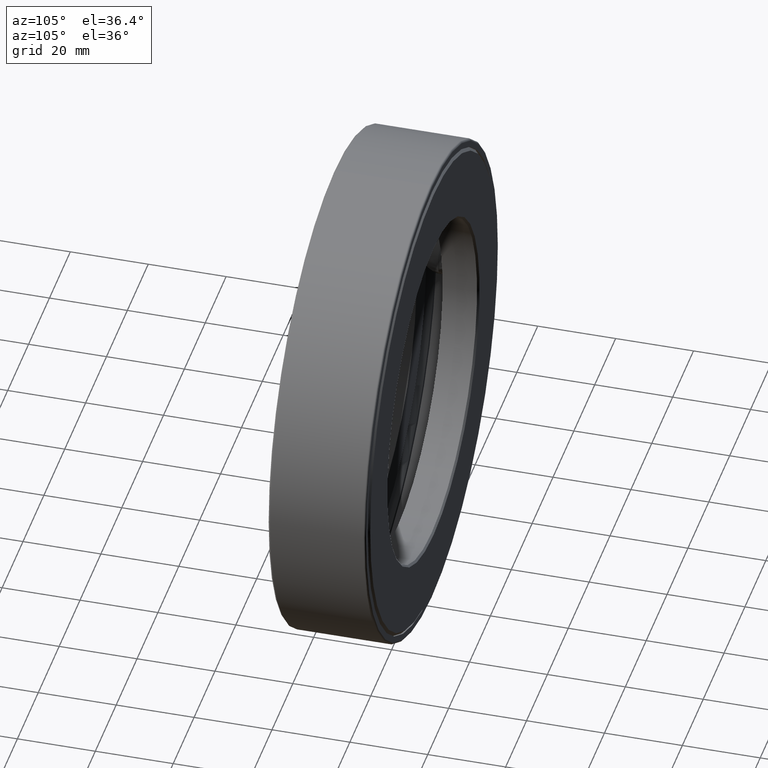
[diagram: clean part render]
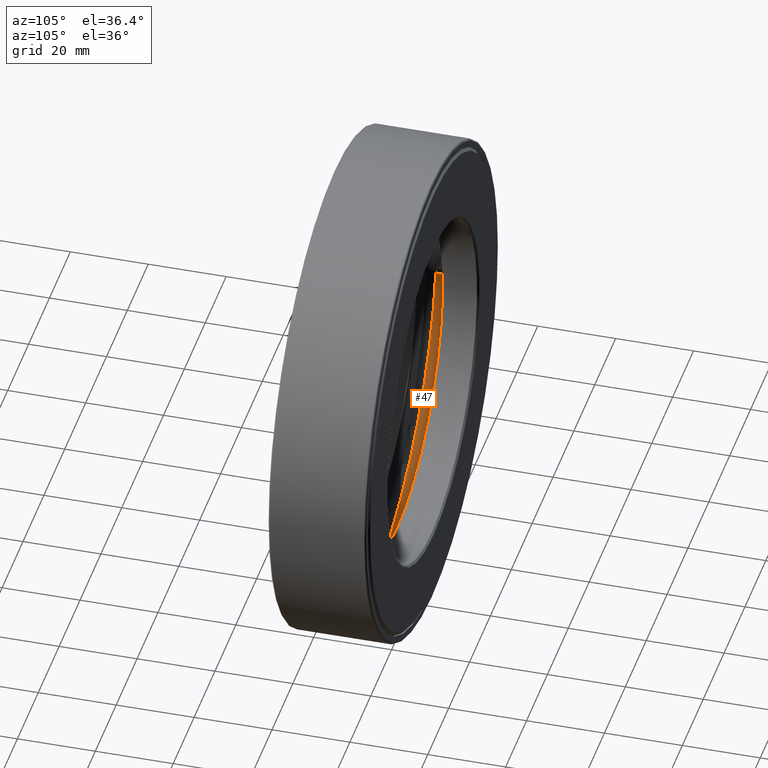
[diagram: same view with one face highlighted and labeled with its STEP entity id]
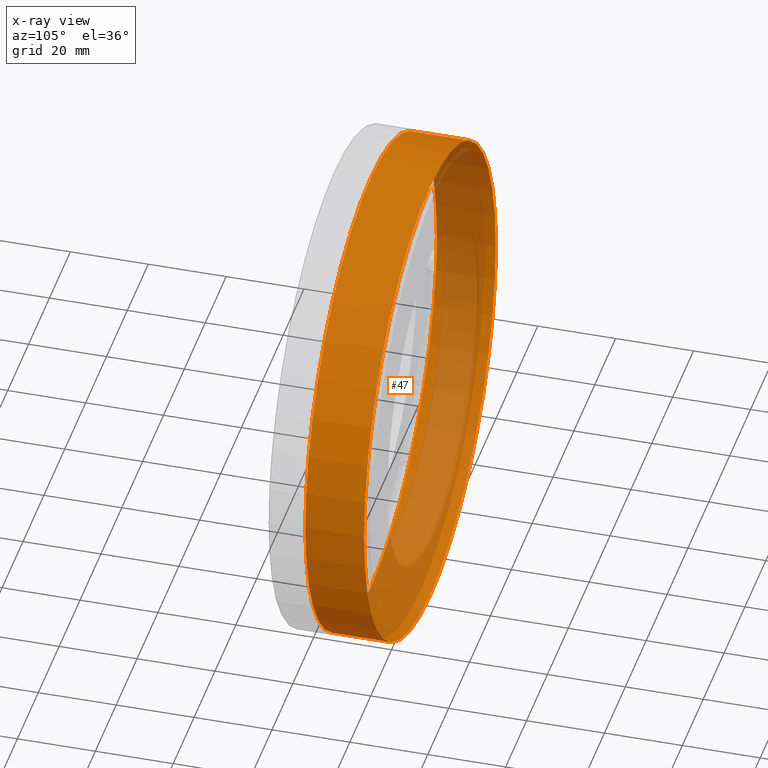
[diagram: x-ray of the same camera — body ghosted, the highlighted face saturated]
A machine part, auxiliary view. The second image highlights one B-rep face of the part: STEP entity #47.
The next image is the same camera in x-ray: the body ghosted, the highlighted face saturated — about 35% of this face is hidden behind the body in this view.
In plain terms, the highlighted cylindrical surface (bore or boss wall) has radius 62.992 mm, axis along (-0, 1, -0).
Its self-contained STEP definition (entity closure, byte-faithful):
#42 = CARTESIAN_POINT ( 'NONE',  ( 0.0000000000000000000, 0.9649999999999996400, 2.480000000000000400 ) ) ;
#47 = ADVANCED_FACE ( 'NONE', ( #103, #135 ), #323, .F. ) ;
#50 = CARTESIAN_POINT ( 'NONE',  ( 0.0000000000000000000, 0.3687499999999995800, 2.480000000000000400 ) ) ;
#60 = AXIS2_PLACEMENT_3D ( 'NONE', #184, #186, #265 ) ;
#64 = AXIS2_PLACEMENT_3D ( 'NONE', #301, #441, #496 ) ;
#103 = FACE_OUTER_BOUND ( 'NONE', #381, .T. ) ;
#135 = FACE_OUTER_BOUND ( 'NONE', #469, .T. ) ;
#184 = CARTESIAN_POINT ( 'NONE',  ( 0.0000000000000000000, 0.0000000000000000000, 0.0000000000000000000 ) ) ;
#186 = DIRECTION ( 'NONE',  ( -0.0000000000000000000, 1.000000000000000000, -0.0000000000000000000 ) ) ;
#203 = CIRCLE ( 'NONE', #64, 2.480000000000000400 ) ;
#248 = DIRECTION ( 'NONE',  ( 0.0000000000000000000, 0.0000000000000000000, 1.000000000000000000 ) ) ;
#265 = DIRECTION ( 'NONE',  ( 0.0000000000000000000, 0.0000000000000000000, 1.000000000000000000 ) ) ;
#296 = DIRECTION ( 'NONE',  ( -0.0000000000000000000, 1.000000000000000000, -0.0000000000000000000 ) ) ;
#301 = CARTESIAN_POINT ( 'NONE',  ( 0.0000000000000000000, 0.3687499999999995800, 0.0000000000000000000 ) ) ;
#323 = CYLINDRICAL_SURFACE ( 'NONE', #60, 2.480000000000000400 ) ;
#381 = EDGE_LOOP ( 'NONE', ( #576 ) ) ;
#427 = VERTEX_POINT ( 'NONE', #50 ) ;
#441 = DIRECTION ( 'NONE',  ( -0.0000000000000000000, 1.000000000000000000, -0.0000000000000000000 ) ) ;
#468 = ORIENTED_EDGE ( 'NONE', *, *, #503, .T. ) ;
#469 = EDGE_LOOP ( 'NONE', ( #468 ) ) ;
#477 = EDGE_CURVE ( 'NONE', #427, #427, #203, .T. ) ;
#494 = CARTESIAN_POINT ( 'NONE',  ( 0.0000000000000000000, 0.9649999999999996400, 0.0000000000000000000 ) ) ;
#496 = DIRECTION ( 'NONE',  ( 0.0000000000000000000, 0.0000000000000000000, 1.000000000000000000 ) ) ;
#503 = EDGE_CURVE ( 'NONE', #524, #524, #555, .T. ) ;
#522 = AXIS2_PLACEMENT_3D ( 'NONE', #494, #296, #248 ) ;
#524 = VERTEX_POINT ( 'NONE', #42 ) ;
#555 = CIRCLE ( 'NONE', #522, 2.480000000000000400 ) ;
#576 = ORIENTED_EDGE ( 'NONE', *, *, #477, .F. ) ;